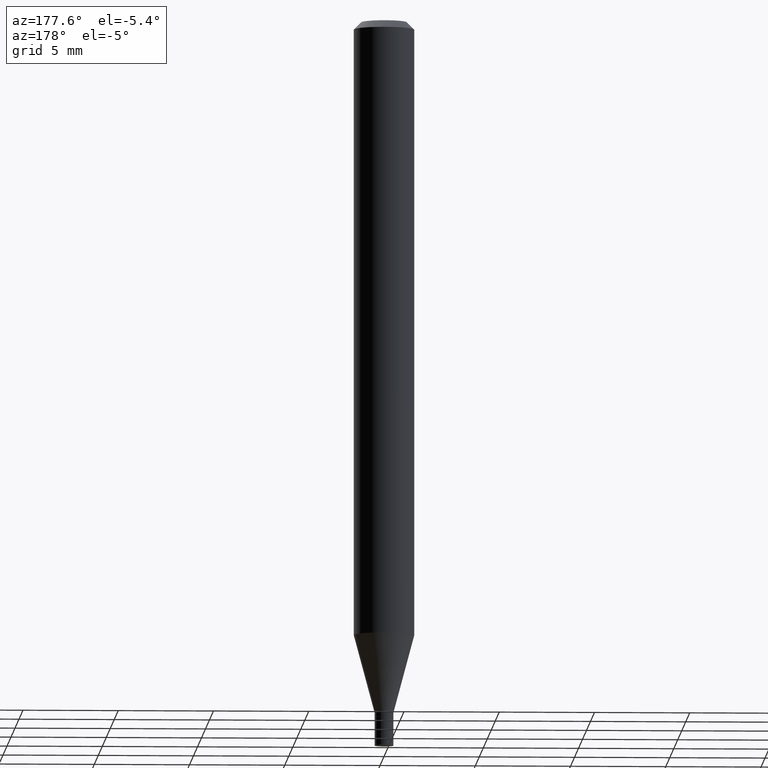
[diagram: clean part render]
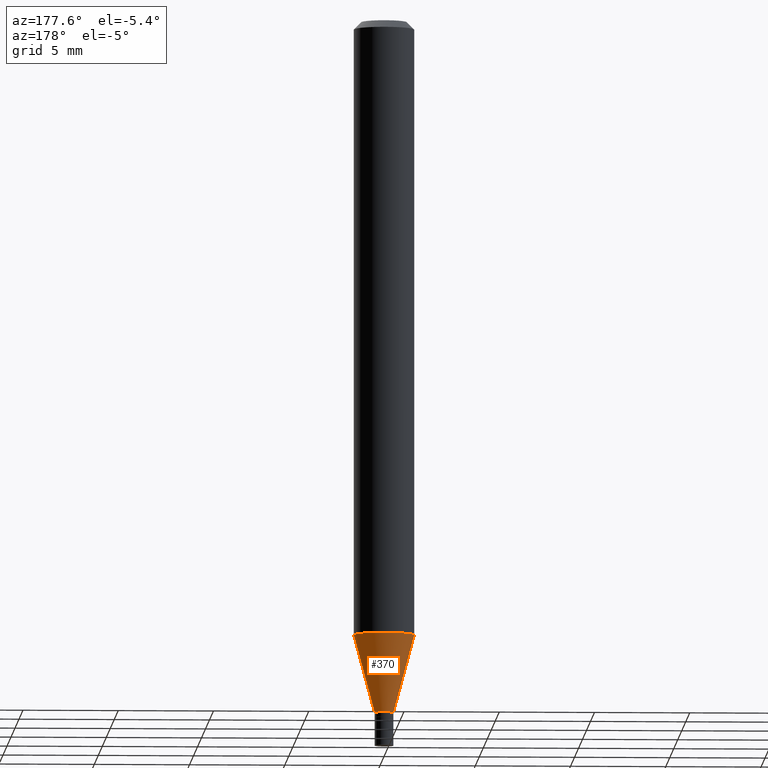
[diagram: same view with one face highlighted and labeled with its STEP entity id]
A machine part, auxiliary view. The second image highlights one B-rep face of the part: STEP entity #370.
In plain terms, the highlighted conical surface has half-angle 15 deg.
Its self-contained STEP definition (entity closure, byte-faithful):
#7 = VECTOR ( 'NONE', #207, 39.37007874015748854 ) ;
#25 = CARTESIAN_POINT ( 'NONE',  ( 0.01949999999999992017, -5.134223308768844733E-15, -1.431499999999999995 ) ) ;
#30 = DIRECTION ( 'NONE',  ( 1.000000000000000000, -6.982962677686287221E-15, 0.000000000000000000 ) ) ;
#44 = LINE ( 'NONE', #194, #7 ) ;
#58 = EDGE_CURVE ( 'NONE', #332, #114, #175, .T. ) ;
#59 = VERTEX_POINT ( 'NONE', #104 ) ;
#60 = CONICAL_SURFACE ( 'NONE', #210, 0.01949999999999992017, 0.2617993877991499629 ) ;
#64 = CARTESIAN_POINT ( 'NONE',  ( -0.01949999999999992017, -4.859499703080744245E-15, -1.431499999999999995 ) ) ;
#88 = DIRECTION ( 'NONE',  ( -2.445468806185136597E-29, 3.491481338843145583E-15, 1.000000000000000000 ) ) ;
#104 = CARTESIAN_POINT ( 'NONE',  ( -0.06250000000000000000, -3.993659739443527600E-15, -1.271021815274538280 ) ) ;
#106 = EDGE_CURVE ( 'NONE', #419, #59, #193, .T. ) ;
#114 = VERTEX_POINT ( 'NONE', #185 ) ;
#132 = DIRECTION ( 'NONE',  ( -0.2588190451025212391, 5.211531920934549464E-15, 0.9659258262890679791 ) ) ;
#154 = ORIENTED_EDGE ( 'NONE', *, *, #267, .T. ) ;
#165 = CARTESIAN_POINT ( 'NONE',  ( 3.500688596054023043E-29, -4.998055536553962721E-15, -1.431499999999999995 ) ) ;
#175 = CIRCLE ( 'NONE', #430, 0.01949999999999992017 ) ;
#178 = CARTESIAN_POINT ( 'NONE',  ( 3.108244201234690449E-29, -4.437748949293590216E-15, -1.271021815274538280 ) ) ;
#185 = CARTESIAN_POINT ( 'NONE',  ( -0.01949999999999992017, -4.426579721262135923E-15, -1.431499999999999995 ) ) ;
#193 = CIRCLE ( 'NONE', #249, 0.06250000000000000000 ) ;
#194 = CARTESIAN_POINT ( 'NONE',  ( 0.01949999999999992017, -5.134223308768844733E-15, -1.431499999999999995 ) ) ;
#195 = EDGE_LOOP ( 'NONE', ( #360, #154, #376, #259 ) ) ;
#207 = DIRECTION ( 'NONE',  ( 0.2588190451025212391, 1.565188264969622362E-15, 0.9659258262890679791 ) ) ;
#210 = AXIS2_PLACEMENT_3D ( 'NONE', #165, #88, #331 ) ;
#238 = FACE_OUTER_BOUND ( 'NONE', #195, .T. ) ;
#245 = DIRECTION ( 'NONE',  ( 1.000000000000000000, -6.982962677686262766E-15, 0.000000000000000000 ) ) ;
#249 = AXIS2_PLACEMENT_3D ( 'NONE', #178, #287, #245 ) ;
#259 = ORIENTED_EDGE ( 'NONE', *, *, #260, .F. ) ;
#260 = EDGE_CURVE ( 'NONE', #332, #419, #44, .T. ) ;
#267 = EDGE_CURVE ( 'NONE', #114, #59, #428, .T. ) ;
#287 = DIRECTION ( 'NONE',  ( -2.445468806185136597E-29, 3.491481338843145583E-15, 1.000000000000000000 ) ) ;
#331 = DIRECTION ( 'NONE',  ( 1.000000000000000000, -6.982962677686287221E-15, 0.000000000000000000 ) ) ;
#332 = VERTEX_POINT ( 'NONE', #25 ) ;
#349 = DIRECTION ( 'NONE',  ( -2.445468806185136597E-29, 3.491481338843145583E-15, 1.000000000000000000 ) ) ;
#360 = ORIENTED_EDGE ( 'NONE', *, *, #58, .T. ) ;
#370 = ADVANCED_FACE ( 'NONE', ( #238 ), #60, .T. ) ;
#376 = ORIENTED_EDGE ( 'NONE', *, *, #106, .F. ) ;
#419 = VERTEX_POINT ( 'NONE', #421 ) ;
#421 = CARTESIAN_POINT ( 'NONE',  ( 0.06250000000000000000, -4.874184116648982674E-15, -1.271021815274538280 ) ) ;
#422 = CARTESIAN_POINT ( 'NONE',  ( 3.500688596054023043E-29, -4.998055536553962721E-15, -1.431499999999999995 ) ) ;
#428 = LINE ( 'NONE', #64, #465 ) ;
#430 = AXIS2_PLACEMENT_3D ( 'NONE', #422, #349, #30 ) ;
#465 = VECTOR ( 'NONE', #132, 39.37007874015748854 ) ;